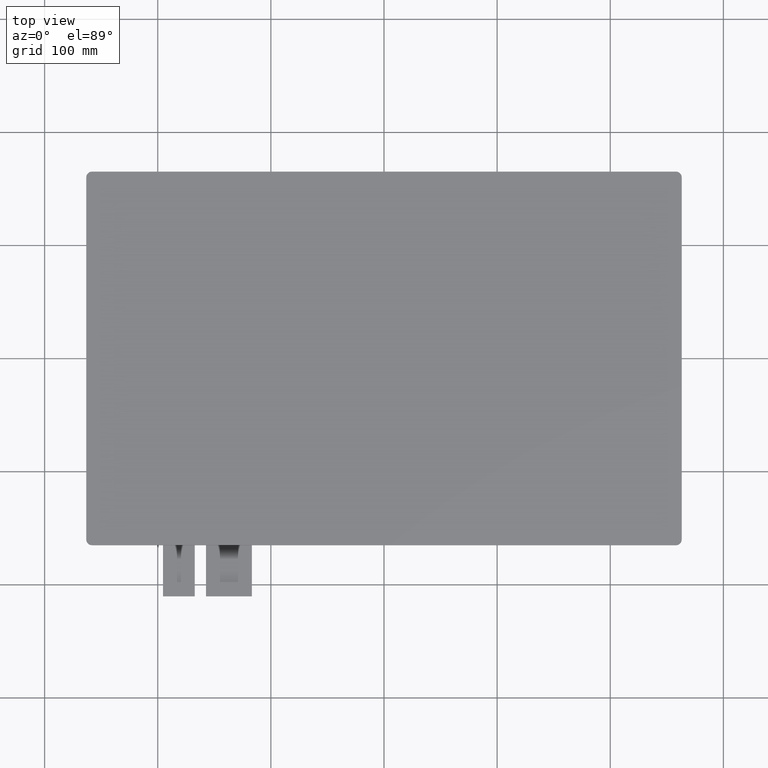
[diagram: clean part render]
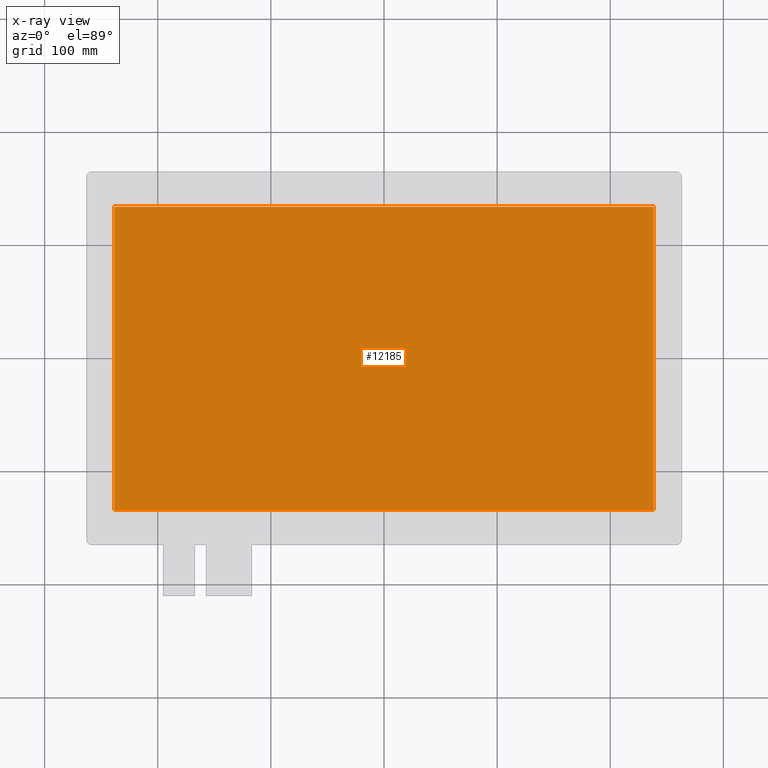
[diagram: x-ray — body ghosted, one internal face saturated and labeled with its STEP entity id]
A machine part, top view, then the same camera in x-ray: the body is ghosted and one INTERNAL B-rep face — a face not visible from any outside direction — is saturated and labeled: STEP entity #12185.
In plain terms, the highlighted planar face has unit normal (0, 0, -1).
Its self-contained STEP definition (entity closure, byte-faithful):
#621=PLANE('',#12807);
#1205=FACE_OUTER_BOUND('',#1793,.T.);
#1793=EDGE_LOOP('',(#11575,#11576,#11577,#11578));
#3503=LINE('',#19181,#5219);
#3504=LINE('',#19183,#5220);
#3505=LINE('',#19185,#5221);
#3506=LINE('',#19186,#5222);
#5219=VECTOR('',#15709,10.);
#5220=VECTOR('',#15710,10.);
#5221=VECTOR('',#15711,10.);
#5222=VECTOR('',#15712,10.);
#6395=VERTEX_POINT('',#19179);
#6396=VERTEX_POINT('',#19180);
#6397=VERTEX_POINT('',#19182);
#6398=VERTEX_POINT('',#19184);
#8123=EDGE_CURVE('',#6395,#6396,#3503,.T.);
#8124=EDGE_CURVE('',#6397,#6395,#3504,.T.);
#8125=EDGE_CURVE('',#6398,#6397,#3505,.T.);
#8126=EDGE_CURVE('',#6396,#6398,#3506,.T.);
#11575=ORIENTED_EDGE('',*,*,#8123,.F.);
#11576=ORIENTED_EDGE('',*,*,#8124,.F.);
#11577=ORIENTED_EDGE('',*,*,#8125,.F.);
#11578=ORIENTED_EDGE('',*,*,#8126,.F.);
#12185=ADVANCED_FACE('',(#1205),#621,.F.);
#12807=AXIS2_PLACEMENT_3D('',#19178,#15707,#15708);
#15707=DIRECTION('center_axis',(0.,0.,-1.));
#15708=DIRECTION('ref_axis',(-1.,0.,0.));
#15709=DIRECTION('',(-1.,0.,0.));
#15710=DIRECTION('',(0.,-1.,0.));
#15711=DIRECTION('',(1.,0.,0.));
#15712=DIRECTION('',(0.,1.,0.));
#19178=CARTESIAN_POINT('Origin',(0.,0.,-0.1));
#19179=CARTESIAN_POINT('',(238.35,-134.05,-0.1));
#19180=CARTESIAN_POINT('',(-238.35,-134.05,-0.1));
#19181=CARTESIAN_POINT('',(-238.35,-134.05,-0.1));
#19182=CARTESIAN_POINT('',(238.35,134.05,-0.1));
#19183=CARTESIAN_POINT('',(238.35,-134.05,-0.1));
#19184=CARTESIAN_POINT('',(-238.35,134.05,-0.1));
#19185=CARTESIAN_POINT('',(238.35,134.05,-0.1));
#19186=CARTESIAN_POINT('',(-238.35,134.05,-0.1));